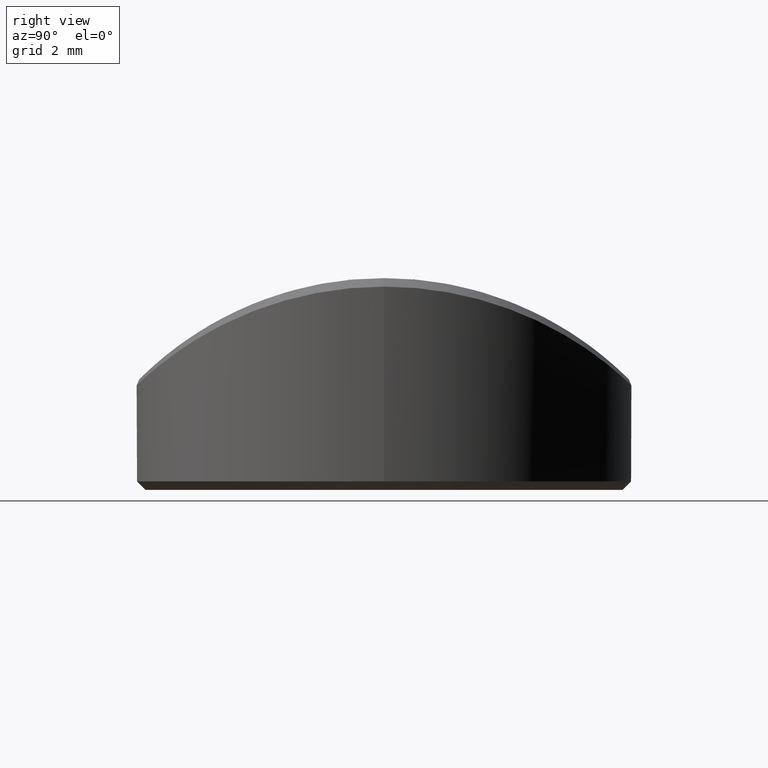
[diagram: clean part render]
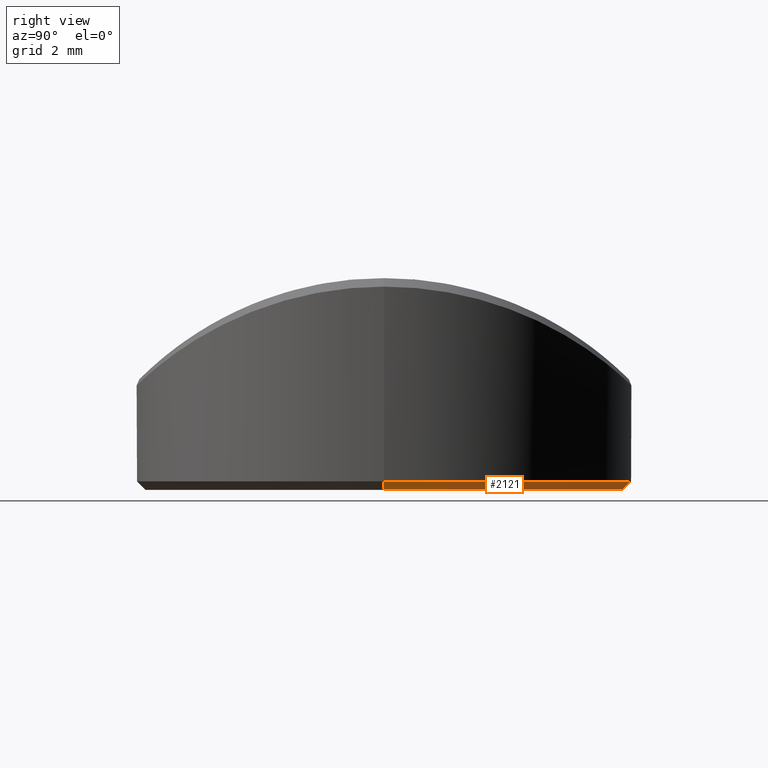
[diagram: same view with one face highlighted and labeled with its STEP entity id]
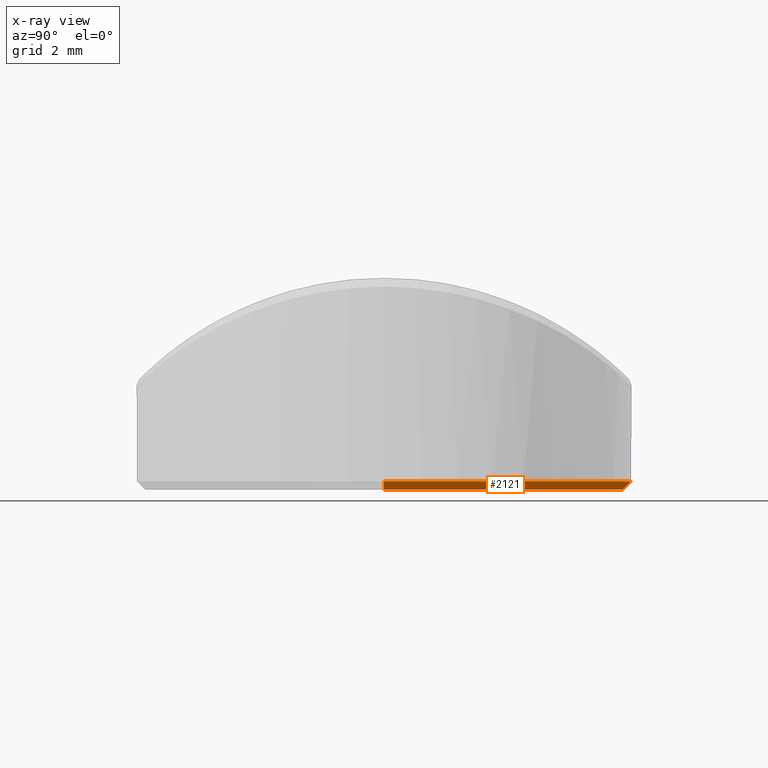
[diagram: x-ray of the same camera — body ghosted, the highlighted face saturated]
A machine part, right view. The second image highlights one B-rep face of the part: STEP entity #2121.
The next image is the same camera in x-ray: the body ghosted, the highlighted face saturated — about 0% of this face is hidden behind the body in this view.
In plain terms, the highlighted conical surface has half-angle 45 deg.
Its self-contained STEP definition (entity closure, byte-faithful):
#21 = CARTESIAN_POINT ( 'NONE',  ( 0.000000000000000000, 0.000000000000000000, 0.1999999999999979294 ) ) ;
#35 = DIRECTION ( 'NONE',  ( -0.000000000000000000, -0.000000000000000000, 1.000000000000000000 ) ) ;
#45 = DIRECTION ( 'NONE',  ( -0.7071067811865489050, 8.659560562354951347E-17, 0.7071067811865460184 ) ) ;
#58 = VERTEX_POINT ( 'NONE', #418 ) ;
#81 = CARTESIAN_POINT ( 'NONE',  ( -5.849999999999999645, 7.164183775012015436E-16, 0.1999999999999979294 ) ) ;
#154 = VECTOR ( 'NONE', #45, 1000.000000000000114 ) ;
#193 = AXIS2_PLACEMENT_3D ( 'NONE', #1805, #1663, #1486 ) ;
#310 = ORIENTED_EDGE ( 'NONE', *, *, #1654, .F. ) ;
#365 = CARTESIAN_POINT ( 'NONE',  ( 5.849999999999999645, 0.000000000000000000, 0.1999999999999979294 ) ) ;
#403 = DIRECTION ( 'NONE',  ( 0.7071067811865489050, 0.000000000000000000, 0.7071067811865460184 ) ) ;
#418 = CARTESIAN_POINT ( 'NONE',  ( 5.849999999999999645, 7.164183775012015436E-16, 0.1999999999999979294 ) ) ;
#439 = LINE ( 'NONE', #81, #154 ) ;
#480 = ORIENTED_EDGE ( 'NONE', *, *, #1625, .F. ) ;
#599 = VERTEX_POINT ( 'NONE', #717 ) ;
#673 = ORIENTED_EDGE ( 'NONE', *, *, #2361, .T. ) ;
#717 = CARTESIAN_POINT ( 'NONE',  ( -5.650000000000000355, 7.041719095097280880E-16, 0.000000000000000000 ) ) ;
#779 = ORIENTED_EDGE ( 'NONE', *, *, #1984, .F. ) ;
#952 = CIRCLE ( 'NONE', #193, 5.650000000000000355 ) ;
#1030 = CARTESIAN_POINT ( 'NONE',  ( -5.849999999999999645, 0.000000000000000000, 0.1999999999999979294 ) ) ;
#1128 = DIRECTION ( 'NONE',  ( -0.000000000000000000, -0.000000000000000000, 1.000000000000000000 ) ) ;
#1205 = VERTEX_POINT ( 'NONE', #1030 ) ;
#1220 = AXIS2_PLACEMENT_3D ( 'NONE', #21, #35, #1448 ) ;
#1272 = CARTESIAN_POINT ( 'NONE',  ( 0.000000000000000000, 0.000000000000000000, 0.1999999999999979294 ) ) ;
#1324 = VERTEX_POINT ( 'NONE', #1773 ) ;
#1374 = CIRCLE ( 'NONE', #1220, 5.849999999999999645 ) ;
#1448 = DIRECTION ( 'NONE',  ( 1.000000000000000000, 0.000000000000000000, 0.000000000000000000 ) ) ;
#1486 = DIRECTION ( 'NONE',  ( 1.000000000000000000, 0.000000000000000000, 0.000000000000000000 ) ) ;
#1625 = EDGE_CURVE ( 'NONE', #58, #1205, #1374, .T. ) ;
#1654 = EDGE_CURVE ( 'NONE', #1324, #58, #2221, .T. ) ;
#1663 = DIRECTION ( 'NONE',  ( -0.000000000000000000, -0.000000000000000000, -1.000000000000000000 ) ) ;
#1773 = CARTESIAN_POINT ( 'NONE',  ( 5.650000000000000355, 0.000000000000000000, 0.000000000000000000 ) ) ;
#1805 = CARTESIAN_POINT ( 'NONE',  ( 0.000000000000000000, 0.000000000000000000, 0.000000000000000000 ) ) ;
#1857 = DIRECTION ( 'NONE',  ( 1.000000000000000000, 0.000000000000000000, 0.000000000000000000 ) ) ;
#1984 = EDGE_CURVE ( 'NONE', #599, #1324, #952, .T. ) ;
#1991 = VECTOR ( 'NONE', #403, 1000.000000000000114 ) ;
#2044 = FACE_OUTER_BOUND ( 'NONE', #2243, .T. ) ;
#2121 = ADVANCED_FACE ( 'NONE', ( #2044 ), #2371, .T. ) ;
#2220 = AXIS2_PLACEMENT_3D ( 'NONE', #1272, #1128, #1857 ) ;
#2221 = LINE ( 'NONE', #365, #1991 ) ;
#2243 = EDGE_LOOP ( 'NONE', ( #779, #673, #480, #310 ) ) ;
#2361 = EDGE_CURVE ( 'NONE', #599, #1205, #439, .T. ) ;
#2371 = CONICAL_SURFACE ( 'NONE', #2220, 5.849999999999999645, 0.7853981633974503884 ) ;